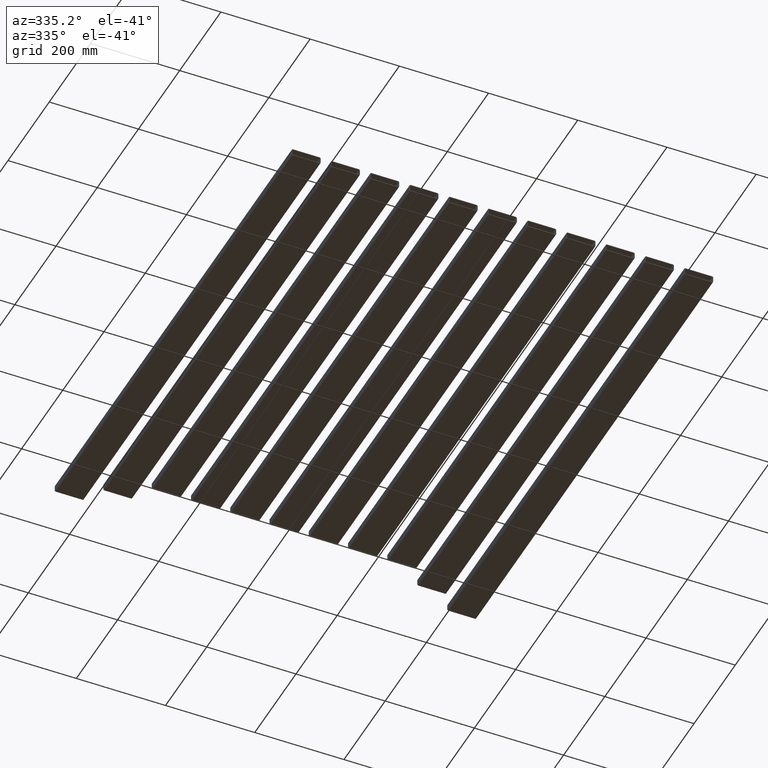
[diagram: clean part render]
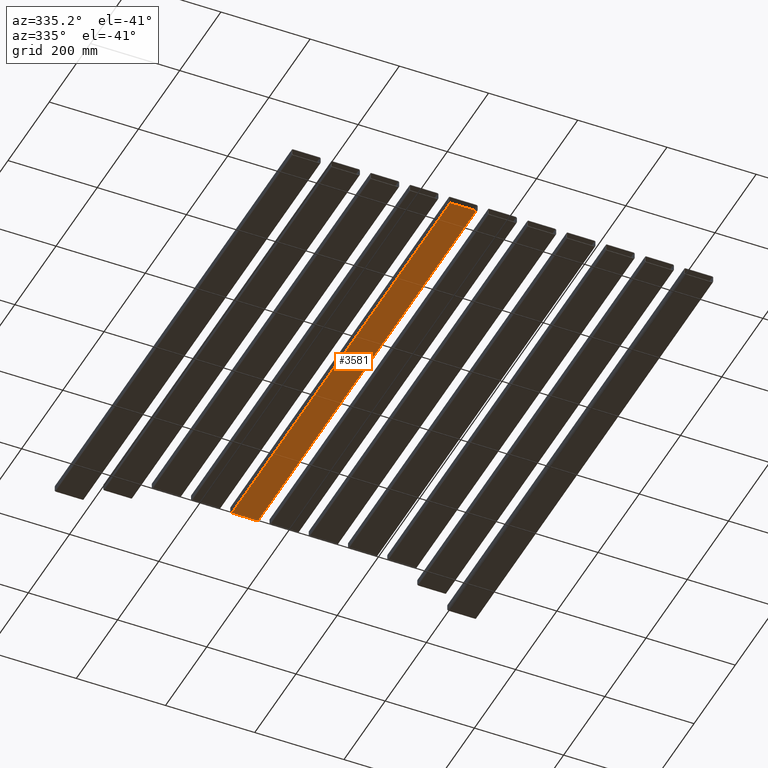
[diagram: same view with one face highlighted and labeled with its STEP entity id]
A machine part, auxiliary view. The second image highlights one B-rep face of the part: STEP entity #3581.
In plain terms, the highlighted planar face has unit normal (-0, -0, 1).
Its self-contained STEP definition (entity closure, byte-faithful):
#78 = AXIS2_PLACEMENT_3D ( 'NONE', #1657, #4018, #5540 ) ;
#223 = DIRECTION ( 'NONE',  ( -9.654113257610057838E-17, 1.000000000000000000, 7.703719777548943412E-34 ) ) ;
#876 = EDGE_LOOP ( 'NONE', ( #3640, #3749, #2922, #5396 ) ) ;
#1490 = CARTESIAN_POINT ( 'NONE',  ( -117.4999999999999432, -634.9999999999998863, -8.000000000000113687 ) ) ;
#1619 = VECTOR ( 'NONE', #5933, 1000.000000000000000 ) ;
#1657 = CARTESIAN_POINT ( 'NONE',  ( -117.4999999999999432, -634.9999999999998863, -8.000000000000113687 ) ) ;
#1891 = CARTESIAN_POINT ( 'NONE',  ( -296.4999999999998863, 425.0000000000001137, -8.000000000000113687 ) ) ;
#1893 = VECTOR ( 'NONE', #4929, 1000.000000000000000 ) ;
#1972 = EDGE_CURVE ( 'NONE', #5794, #2257, #3603, .T. ) ;
#2203 = LINE ( 'NONE', #4722, #4778 ) ;
#2257 = VERTEX_POINT ( 'NONE', #5982 ) ;
#2837 = CARTESIAN_POINT ( 'NONE',  ( -117.4999999999999432, -634.9999999999998863, -8.000000000000113687 ) ) ;
#2922 = ORIENTED_EDGE ( 'NONE', *, *, #1972, .F. ) ;
#2986 = EDGE_CURVE ( 'NONE', #4748, #4771, #4839, .T. ) ;
#3550 = CARTESIAN_POINT ( 'NONE',  ( -117.5000000000000426, 425.0000000000001137, -8.000000000000113687 ) ) ;
#3581 = ADVANCED_FACE ( 'NONE', ( #5983 ), #5062, .F. ) ;
#3603 = LINE ( 'NONE', #5552, #5534 ) ;
#3640 = ORIENTED_EDGE ( 'NONE', *, *, #2986, .T. ) ;
#3713 = EDGE_CURVE ( 'NONE', #4748, #5794, #2203, .T. ) ;
#3749 = ORIENTED_EDGE ( 'NONE', *, *, #5474, .T. ) ;
#4018 = DIRECTION ( 'NONE',  ( -3.645859508832611815E-15, -3.512896218562318196E-31, 1.000000000000000000 ) ) ;
#4093 = CARTESIAN_POINT ( 'NONE',  ( -58.49999999999994316, -634.9999999999998863, -7.999999999999897859 ) ) ;
#4203 = DIRECTION ( 'NONE',  ( 1.000000000000000000, 8.917577859077358983E-33, 3.645859508832611815E-15 ) ) ;
#4722 = CARTESIAN_POINT ( 'NONE',  ( -117.4999999999999432, -634.9999999999998863, -8.000000000000113687 ) ) ;
#4748 = VERTEX_POINT ( 'NONE', #1490 ) ;
#4771 = VERTEX_POINT ( 'NONE', #3550 ) ;
#4778 = VECTOR ( 'NONE', #4203, 1000.000000000000000 ) ;
#4839 = LINE ( 'NONE', #2837, #1619 ) ;
#4929 = DIRECTION ( 'NONE',  ( 1.000000000000000000, -1.307309350919195564E-33, 0.000000000000000000 ) ) ;
#5062 = PLANE ( 'NONE',  #78 ) ;
#5396 = ORIENTED_EDGE ( 'NONE', *, *, #3713, .F. ) ;
#5474 = EDGE_CURVE ( 'NONE', #4771, #2257, #6247, .T. ) ;
#5534 = VECTOR ( 'NONE', #223, 1000.000000000000000 ) ;
#5540 = DIRECTION ( 'NONE',  ( 1.000000000000000000, 8.917577859077358983E-33, 3.645859508832611815E-15 ) ) ;
#5552 = CARTESIAN_POINT ( 'NONE',  ( -58.49999999999994316, -634.9999999999998863, -7.999999999999897859 ) ) ;
#5794 = VERTEX_POINT ( 'NONE', #4093 ) ;
#5933 = DIRECTION ( 'NONE',  ( -9.654113257610057838E-17, 1.000000000000000000, 7.703719777548943412E-34 ) ) ;
#5982 = CARTESIAN_POINT ( 'NONE',  ( -58.50000000000004974, 425.0000000000001137, -8.000000000000113687 ) ) ;
#5983 = FACE_OUTER_BOUND ( 'NONE', #876, .T. ) ;
#6247 = LINE ( 'NONE', #1891, #1893 ) ;